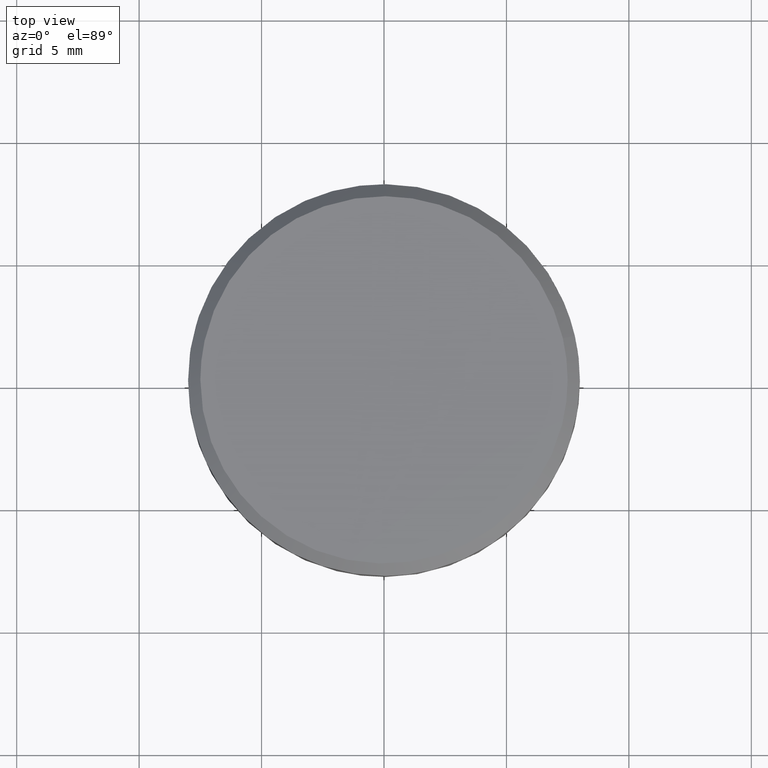
[diagram: clean part render]
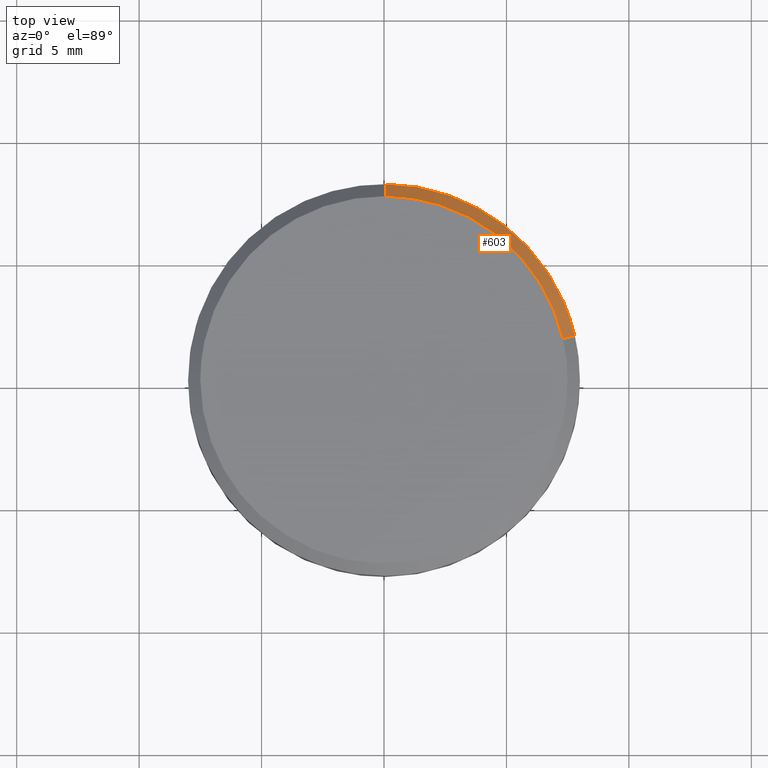
[diagram: same view with one face highlighted and labeled with its STEP entity id]
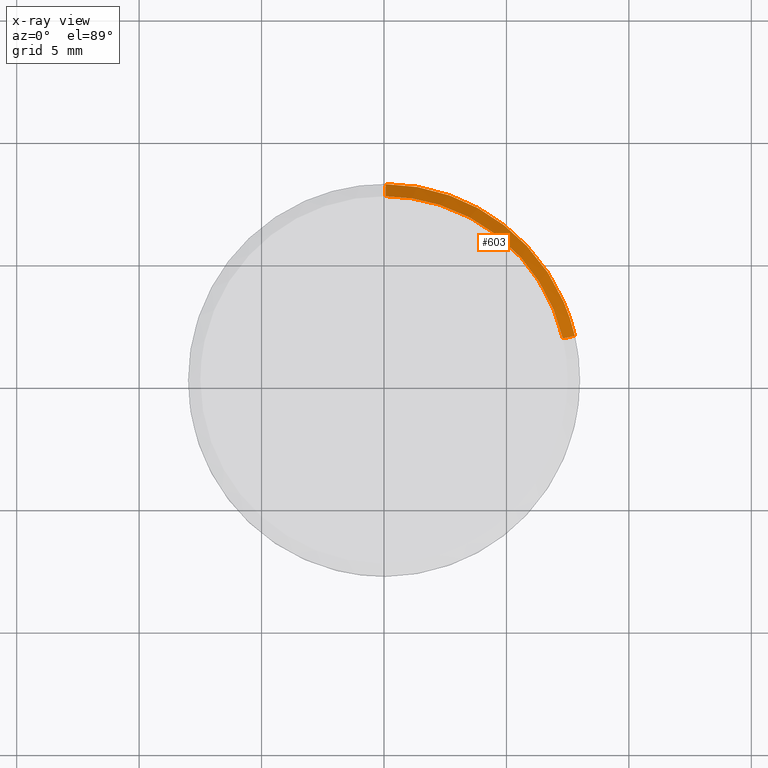
[diagram: x-ray of the same camera — body ghosted, the highlighted face saturated]
A machine part, top view. The second image highlights one B-rep face of the part: STEP entity #603.
The next image is the same camera in x-ray: the body ghosted, the highlighted face saturated — about 0% of this face is hidden behind the body in this view.
In plain terms, the highlighted face is a freeform B-spline surface patch.
Its self-contained STEP definition (entity closure, byte-faithful):
#414=CARTESIAN_POINT('',(7.793745225428451,1.804864360863774,8.999999999999716));
#415=VERTEX_POINT('',#414);
#431=CARTESIAN_POINT('',(7.306636148837393,1.692060338325327,9.499999999997934));
#432=VERTEX_POINT('',#431);
#433=CARTESIAN_POINT('',(7.306636148837393,1.692060338325327,9.499999999997934));
#434=CARTESIAN_POINT('',(7.793745225428451,1.804864360863774,8.999999999999716));
#435=QUASI_UNIFORM_CURVE('',1,(#433,#434),.UNSPECIFIED.,.F.,.U.);
#436=EDGE_CURVE('',#432,#415,#435,.T.);
#470=CARTESIAN_POINT('',(0.065449016255905,7.499714422983589,9.499999999997538));
#471=VERTEX_POINT('',#470);
#487=CARTESIAN_POINT('',(0.069812284012937,7.999695384516684,8.999999999996486));
#488=VERTEX_POINT('',#487);
#489=CARTESIAN_POINT('',(0.065449016255905,7.499714422983589,9.499999999997538));
#490=CARTESIAN_POINT('',(0.069812284012937,7.999695384516684,8.999999999996486));
#491=QUASI_UNIFORM_CURVE('',1,(#489,#490),.UNSPECIFIED.,.F.,.U.);
#492=EDGE_CURVE('',#471,#488,#491,.T.);
#559=CARTESIAN_POINT('',(0.065339934544074,7.487214898942977,9.512500000000001));
#560=CARTESIAN_POINT('',(5.963692058399673,7.435740759774748,9.512500000000001));
#561=CARTESIAN_POINT('',(7.294458421924698,1.689240237743507,9.512499999999999));
#562=CARTESIAN_POINT('',(0.069924092723065,8.012507396652685,8.987187499999997));
#563=CARTESIAN_POINT('',(6.382096330109651,7.957421904064514,8.987187499999997));
#564=CARTESIAN_POINT('',(7.806227395516387,1.807754963939131,8.987187499999997));
#572=(BOUNDED_SURFACE()B_SPLINE_SURFACE(2,1,((#559,#562),(#560,#563),(#561,#564)),.UNSPECIFIED.,.F.,.F.,.U.)B_SPLINE_SURFACE_WITH_KNOTS((3,3),(2,2),(0.0,11.103124578239370),(0.0,1.0),.UNSPECIFIED.)GEOMETRIC_REPRESENTATION_ITEM()RATIONAL_B_SPLINE_SURFACE(((1.0,1.0),(0.753969696196700,0.753969696196700),(0.921270302782944,0.921270302782944)))REPRESENTATION_ITEM('')SURFACE());
#573=CARTESIAN_POINT('',(0.069812284012937,7.999695384516684,8.999999999996486));
#574=CARTESIAN_POINT('',(6.371891347878014,7.944697973675051,9.0));
#575=CARTESIAN_POINT('',(7.793745225428451,1.804864360863774,8.999999999999716));
#583=(BOUNDED_CURVE()B_SPLINE_CURVE(2,(#573,#574,#575),.UNSPECIFIED.,.F.,.U.)B_SPLINE_CURVE_WITH_KNOTS((3,3),(0.751539894336128,0.961422971784502),.UNSPECIFIED.)CURVE()GEOMETRIC_REPRESENTATION_ITEM()RATIONAL_B_SPLINE_CURVE((0.996414028097765,0.753549905436857,0.923556557442612))REPRESENTATION_ITEM(''));
#584=EDGE_CURVE('',#488,#415,#583,.T.);
#585=ORIENTED_EDGE('',*,*,#584,.F.);
#586=ORIENTED_EDGE('',*,*,#492,.F.);
#587=CARTESIAN_POINT('',(7.306636148837393,1.692060338325327,9.499999999997934));
#588=CARTESIAN_POINT('',(5.973648138608220,7.448154350330379,9.500000000000000));
#589=CARTESIAN_POINT('',(0.065449016255905,7.499714422983589,9.499999999997538));
#597=(BOUNDED_CURVE()B_SPLINE_CURVE(2,(#587,#588,#589),.UNSPECIFIED.,.F.,.U.)B_SPLINE_CURVE_WITH_KNOTS((3,3),(0.538577028216173,0.748460105664163),.UNSPECIFIED.)CURVE()GEOMETRIC_REPRESENTATION_ITEM()RATIONAL_B_SPLINE_CURVE((0.923556557441517,0.753549905437403,0.996414028098439))REPRESENTATION_ITEM(''));
#598=EDGE_CURVE('',#432,#471,#597,.T.);
#599=ORIENTED_EDGE('',*,*,#598,.F.);
#600=ORIENTED_EDGE('',*,*,#436,.T.);
#601=EDGE_LOOP('',(#585,#586,#599,#600));
#602=FACE_OUTER_BOUND('',#601,.T.);
#603=ADVANCED_FACE('',(#602),#572,.T.);